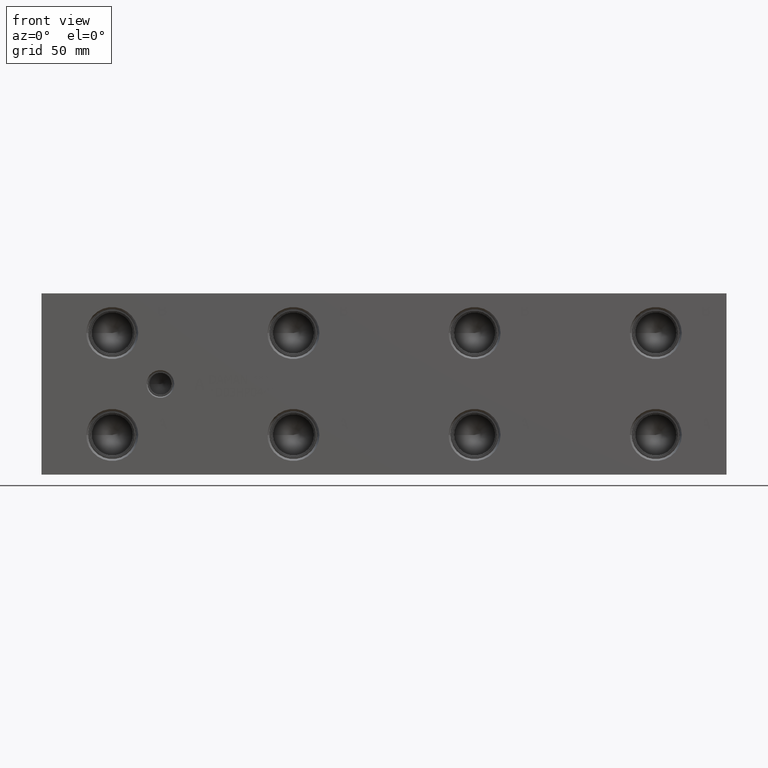
[diagram: clean part render]
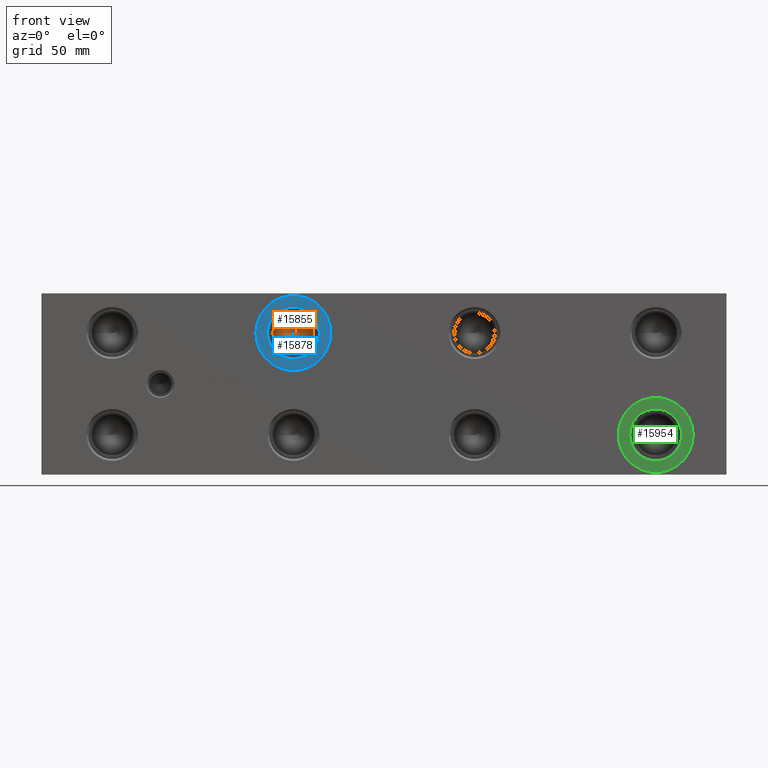
[diagram: same view with three faces highlighted in distinct colors, each labeled with its STEP entity id]
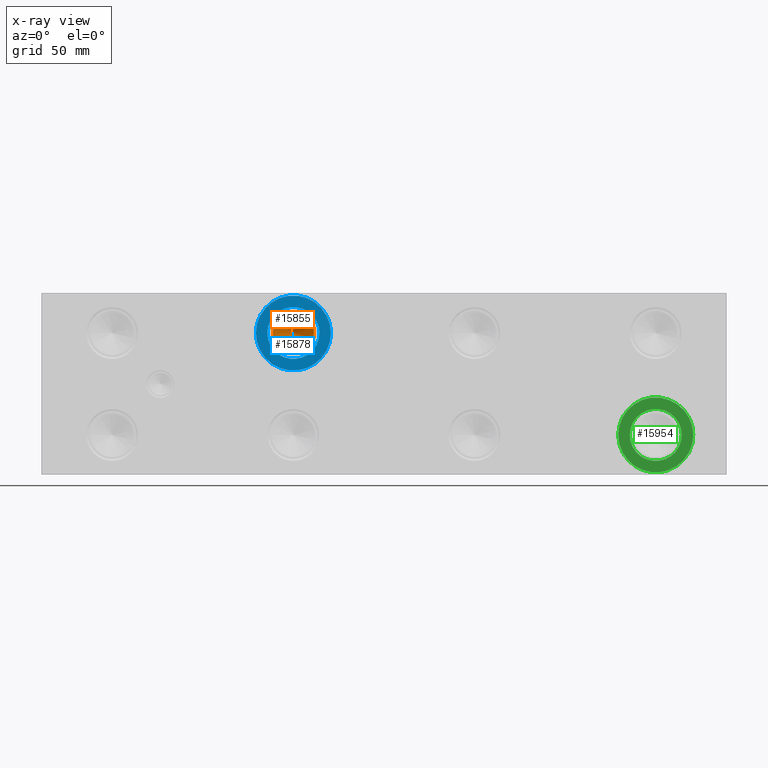
[diagram: x-ray of the same camera — body ghosted, the three highlighted faces saturated]
A machine part, front view with three faces highlighted in distinct colors.
The next image is the same camera in x-ray (body ghosted, the three faces saturated) — at least one of them is partly hidden behind the body in this view.
Their STEP definitions:

[orange] entity #15855 — the highlighted conical surface has half-angle 60 deg.
#21=CONICAL_SURFACE('',#16600,5.7531,1.0471975511966);
#464=CIRCLE('',#16601,11.5062);
#465=CIRCLE('',#16602,11.5062);
#1949=FACE_OUTER_BOUND('',#2862,.T.);
#2862=EDGE_LOOP('',(#12992,#12993,#12994,#12995));
#4409=LINE('',#26456,#5830);
#5830=VECTOR('',#19439,5.7531);
#7128=VERTEX_POINT('',#26452);
#7129=VERTEX_POINT('',#26453);
#7130=VERTEX_POINT('',#26455);
#9205=EDGE_CURVE('',#7128,#7129,#464,.T.);
#9206=EDGE_CURVE('',#7129,#7130,#4409,.T.);
#9207=EDGE_CURVE('',#7129,#7128,#465,.T.);
#12992=ORIENTED_EDGE('',*,*,#9205,.T.);
#12993=ORIENTED_EDGE('',*,*,#9206,.T.);
#12994=ORIENTED_EDGE('',*,*,#9206,.F.);
#12995=ORIENTED_EDGE('',*,*,#9207,.T.);
#15855=ADVANCED_FACE('',(#1949),#21,.F.);
#16600=AXIS2_PLACEMENT_3D('',#26451,#19435,#19436);
#16601=AXIS2_PLACEMENT_3D('',#26454,#19437,#19438);
#16602=AXIS2_PLACEMENT_3D('',#26457,#19440,#19441);
#19435=DIRECTION('center_axis',(0.,-1.,0.));
#19436=DIRECTION('ref_axis',(1.,0.,0.));
#19437=DIRECTION('center_axis',(0.,-1.,0.));
#19438=DIRECTION('ref_axis',(1.,0.,0.));
#19439=DIRECTION('',(0.866025403784439,0.5,1.06057523872491E-16));
#19440=DIRECTION('center_axis',(0.,-1.,0.));
#19441=DIRECTION('ref_axis',(1.,0.,0.));
#26451=CARTESIAN_POINT('Origin',(141.2748,34.1787738336748,79.375));
#26452=CARTESIAN_POINT('',(152.781,30.85722,79.375));
#26453=CARTESIAN_POINT('',(129.7686,30.85722,79.375));
#26454=CARTESIAN_POINT('Origin',(141.2748,30.85722,79.375));
#26455=CARTESIAN_POINT('',(141.2748,37.5003276673497,79.375));
#26456=CARTESIAN_POINT('',(135.5217,34.1787738336748,79.375));
#26457=CARTESIAN_POINT('Origin',(141.2748,30.85722,79.375));

[blue] entity #15878 — the highlighted planar face has unit normal (0, 1, 0).
#494=CIRCLE('',#16653,21.0185);
#495=CIRCLE('',#16654,21.0185);
#496=CIRCLE('',#16656,14.5923);
#497=CIRCLE('',#16657,14.5923);
#1290=FACE_BOUND('',#2890,.T.);
#1972=FACE_OUTER_BOUND('',#2889,.T.);
#2889=EDGE_LOOP('',(#13097,#13098));
#2890=EDGE_LOOP('',(#13099,#13100));
#7161=VERTEX_POINT('',#26555);
#7162=VERTEX_POINT('',#26557);
#7163=VERTEX_POINT('',#26561);
#7164=VERTEX_POINT('',#26562);
#9254=EDGE_CURVE('',#7161,#7162,#494,.T.);
#9255=EDGE_CURVE('',#7162,#7161,#495,.T.);
#9256=EDGE_CURVE('',#7163,#7164,#496,.T.);
#9257=EDGE_CURVE('',#7164,#7163,#497,.T.);
#13097=ORIENTED_EDGE('',*,*,#9255,.F.);
#13098=ORIENTED_EDGE('',*,*,#9254,.F.);
#13099=ORIENTED_EDGE('',*,*,#9256,.T.);
#13100=ORIENTED_EDGE('',*,*,#9257,.T.);
#14682=PLANE('',#16655);
#15878=ADVANCED_FACE('',(#1972,#1290),#14682,.F.);
#16653=AXIS2_PLACEMENT_3D('',#26558,#19560,#19561);
#16654=AXIS2_PLACEMENT_3D('',#26559,#19562,#19563);
#16655=AXIS2_PLACEMENT_3D('',#26560,#19564,#19565);
#16656=AXIS2_PLACEMENT_3D('',#26563,#19566,#19567);
#16657=AXIS2_PLACEMENT_3D('',#26564,#19568,#19569);
#19560=DIRECTION('center_axis',(0.,1.,0.));
#19561=DIRECTION('ref_axis',(1.,0.,0.));
#19562=DIRECTION('center_axis',(0.,1.,0.));
#19563=DIRECTION('ref_axis',(1.,0.,0.));
#19564=DIRECTION('center_axis',(0.,1.,0.));
#19565=DIRECTION('ref_axis',(0.,0.,1.));
#19566=DIRECTION('center_axis',(0.,1.,0.));
#19567=DIRECTION('ref_axis',(1.,0.,0.));
#19568=DIRECTION('center_axis',(0.,1.,0.));
#19569=DIRECTION('ref_axis',(1.,0.,0.));
#26555=CARTESIAN_POINT('',(120.2563,0.7874,79.375));
#26557=CARTESIAN_POINT('',(162.2933,0.7874,79.375));
#26558=CARTESIAN_POINT('Origin',(141.2748,0.7874,79.375));
#26559=CARTESIAN_POINT('Origin',(141.2748,0.7874,79.375));
#26560=CARTESIAN_POINT('Origin',(155.8671,0.7874,79.375));
#26561=CARTESIAN_POINT('',(155.8671,0.7874,79.375));
#26562=CARTESIAN_POINT('',(126.6825,0.7874,79.375));
#26563=CARTESIAN_POINT('Origin',(141.2748,0.7874,79.375));
#26564=CARTESIAN_POINT('Origin',(141.2748,0.7874,79.375));

[green] entity #15954 — the highlighted planar face has unit normal (0, 1, 0).
#611=CIRCLE('',#16846,21.0185);
#612=CIRCLE('',#16847,21.0185);
#613=CIRCLE('',#16849,14.5923);
#614=CIRCLE('',#16850,14.5923);
#1305=FACE_BOUND('',#2981,.T.);
#2048=FACE_OUTER_BOUND('',#2980,.T.);
#2980=EDGE_LOOP('',(#13474,#13475));
#2981=EDGE_LOOP('',(#13476,#13477));
#7287=VERTEX_POINT('',#26935);
#7288=VERTEX_POINT('',#26937);
#7289=VERTEX_POINT('',#26941);
#7290=VERTEX_POINT('',#26942);
#9432=EDGE_CURVE('',#7287,#7288,#611,.T.);
#9433=EDGE_CURVE('',#7288,#7287,#612,.T.);
#9434=EDGE_CURVE('',#7289,#7290,#613,.T.);
#9435=EDGE_CURVE('',#7290,#7289,#614,.T.);
#13474=ORIENTED_EDGE('',*,*,#9433,.F.);
#13475=ORIENTED_EDGE('',*,*,#9432,.F.);
#13476=ORIENTED_EDGE('',*,*,#9434,.T.);
#13477=ORIENTED_EDGE('',*,*,#9435,.T.);
#14697=PLANE('',#16848);
#15954=ADVANCED_FACE('',(#2048,#1305),#14697,.F.);
#16846=AXIS2_PLACEMENT_3D('',#26938,#20007,#20008);
#16847=AXIS2_PLACEMENT_3D('',#26939,#20009,#20010);
#16848=AXIS2_PLACEMENT_3D('',#26940,#20011,#20012);
#16849=AXIS2_PLACEMENT_3D('',#26943,#20013,#20014);
#16850=AXIS2_PLACEMENT_3D('',#26944,#20015,#20016);
#20007=DIRECTION('center_axis',(0.,1.,0.));
#20008=DIRECTION('ref_axis',(1.,0.,0.));
#20009=DIRECTION('center_axis',(0.,1.,0.));
#20010=DIRECTION('ref_axis',(1.,0.,0.));
#20011=DIRECTION('center_axis',(0.,1.,0.));
#20012=DIRECTION('ref_axis',(0.,0.,1.));
#20013=DIRECTION('center_axis',(0.,1.,0.));
#20014=DIRECTION('ref_axis',(1.,0.,0.));
#20015=DIRECTION('center_axis',(0.,1.,0.));
#20016=DIRECTION('ref_axis',(1.,0.,0.));
#26935=CARTESIAN_POINT('',(323.4563,0.7874,22.225));
#26937=CARTESIAN_POINT('',(365.4933,0.7874,22.225));
#26938=CARTESIAN_POINT('Origin',(344.4748,0.7874,22.225));
#26939=CARTESIAN_POINT('Origin',(344.4748,0.7874,22.225));
#26940=CARTESIAN_POINT('Origin',(359.0671,0.7874,22.225));
#26941=CARTESIAN_POINT('',(359.0671,0.7874,22.225));
#26942=CARTESIAN_POINT('',(329.8825,0.787400000000009,22.225));
#26943=CARTESIAN_POINT('Origin',(344.4748,0.7874,22.225));
#26944=CARTESIAN_POINT('Origin',(344.4748,0.7874,22.225));